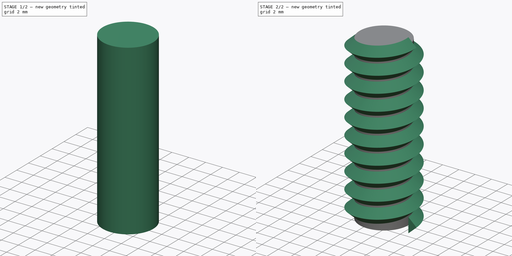
[diagram: build sequence overview — one tinted view per stage of 2, left to right]
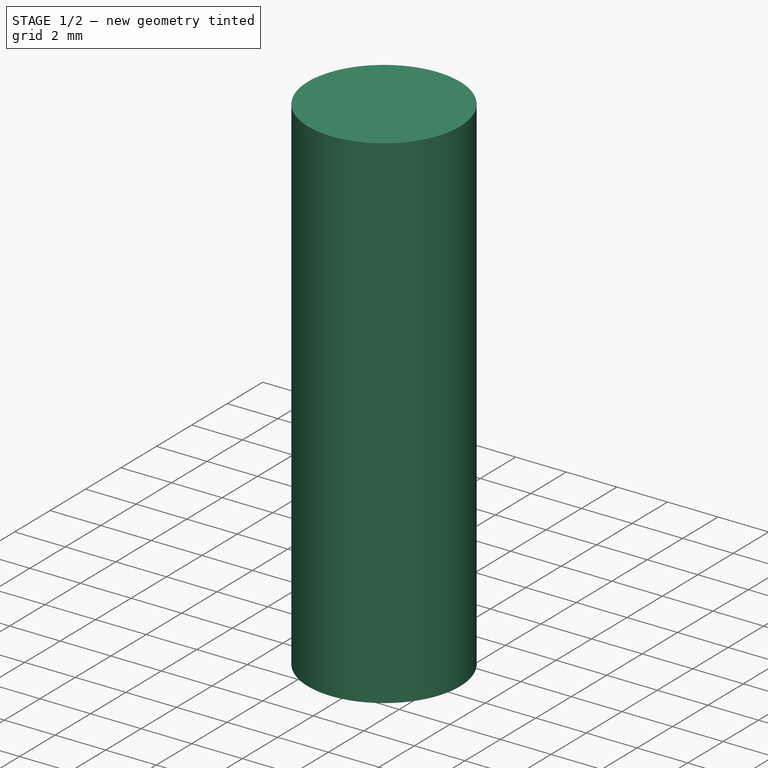
[diagram: stage 1 of 2 — iso view after this stage's code; geometry added in this stage tinted green]
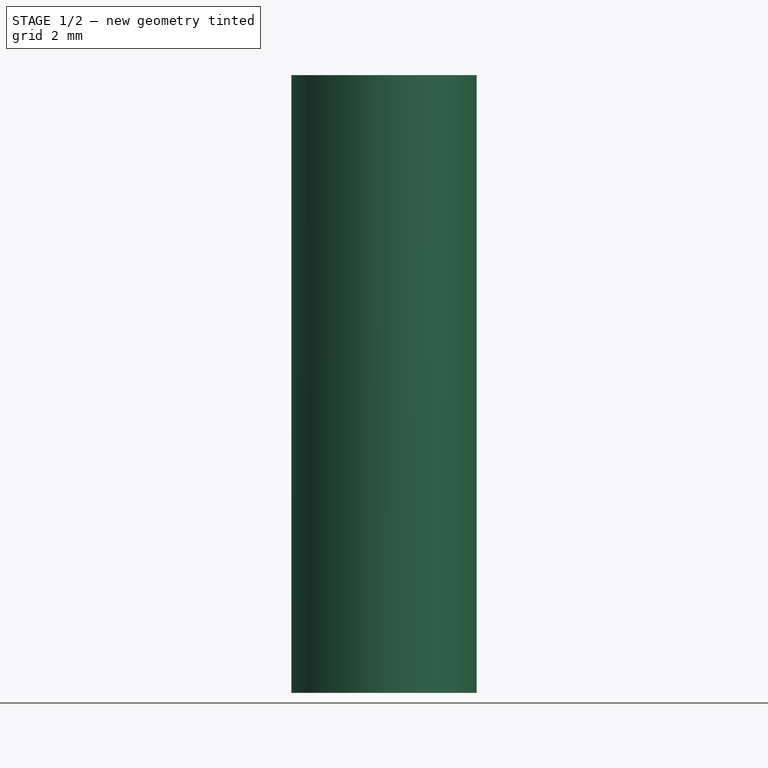
[diagram: stage 1 of 2 — front view after this stage's code; geometry added in this stage tinted green]
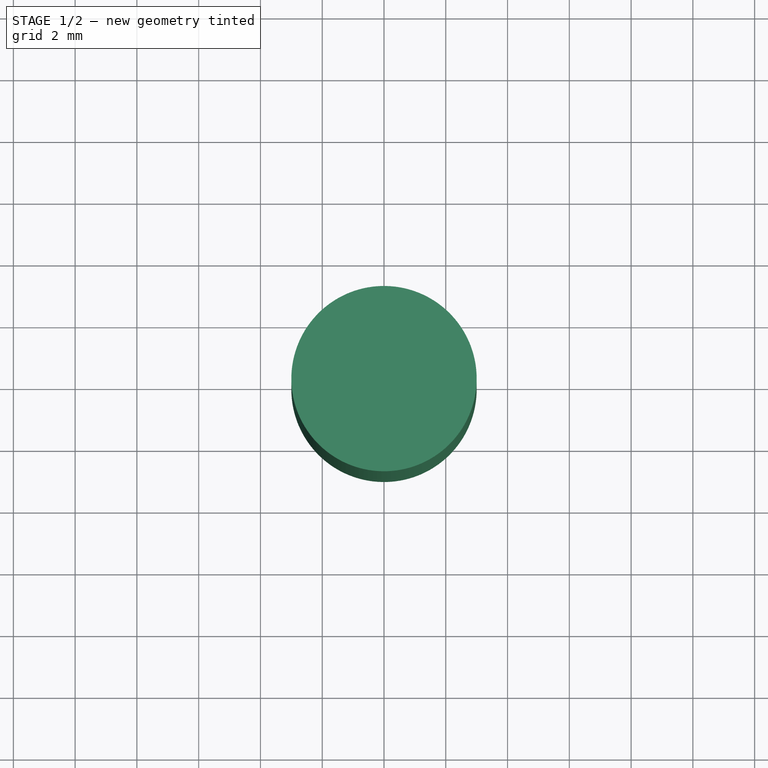
[diagram: stage 1 of 2 — top view after this stage's code; geometry added in this stage tinted green]
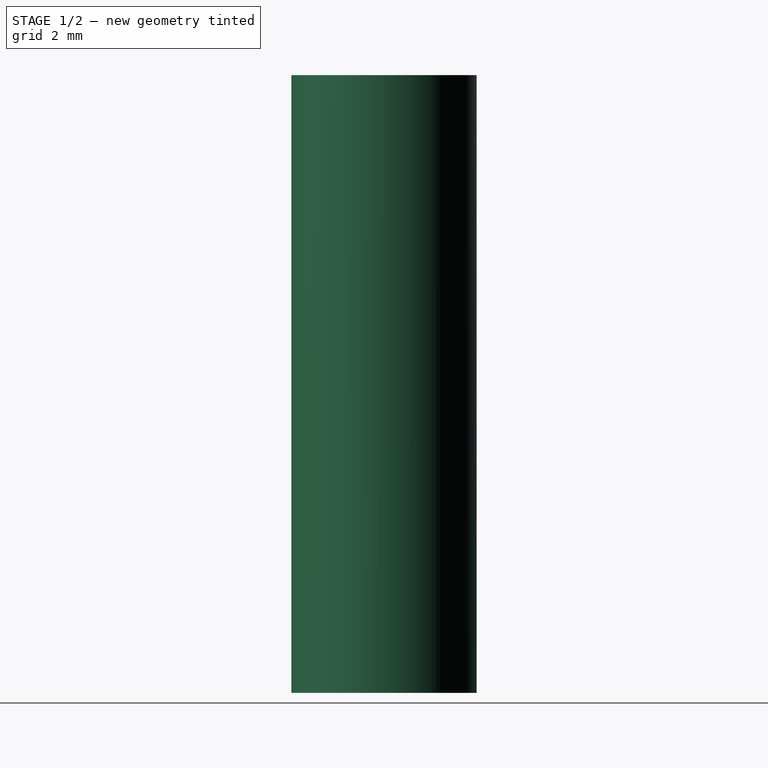
[diagram: stage 1 of 2 — right view after this stage's code; geometry added in this stage tinted green]
FCSTD DOCUMENT  (FreeCAD 1.0R39319 (Git))
Label: ShaftScrew__Lead 8
License: All rights reserved
LicenseURL: http://en.wikipedia.org/wiki/All_rights_reserved
objects: Sketcher::SketchObject×2, Part::Helix×1, Part::Sweep×1, PartDesign::Pad×1, PartDesign::Body×1
note: 10 computed .brp shape members not serialized (recipe doc carries the construction recipe); baked Part::Feature solids carry a one-line shape summary decoded from their .brp

FEATURE [Sketcher::SketchObject] Sketch001
  ArcFitTolerance = 0
  AttachmentSupport = -> [XY_Plane]
  FullyConstrained = true
  MakeInternals = false
  MapMode = 5
  sketch-geometry (1):
    g0: Circle CenterX=0 CenterY=0 CenterZ=0 NormalX=0 NormalY=0 NormalZ=1 AngleXU=0 Radius=3
  constraints (2):
    c: Coincident(g0,g-1)
    c: Diameter(g0) = 6
FEATURE [PartDesign::Pad] Pad
  AllowMultiFace = false
  Direction = (0,0,1)
  Length = 20
  Length2 = 100
  Profile = -> Sketch001
  Suppressed = false
  Type = 0
FEATURE [PartDesign::Body] Body
  AllowCompound = false
  Group = -> [Sketch001,Pad]
  Origin = -> Origin
  Tip = -> Pad
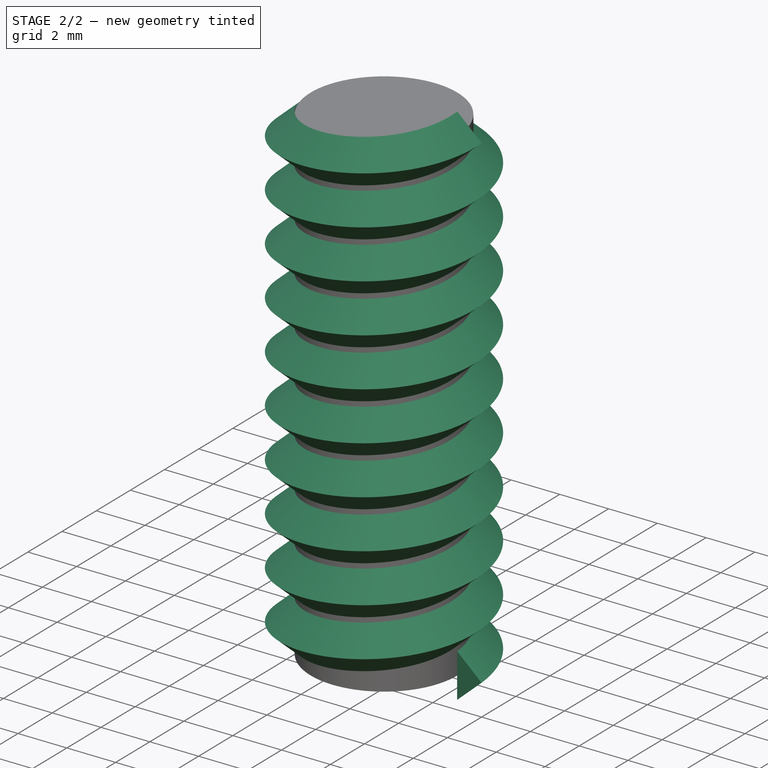
[diagram: stage 2 of 2 — iso view after this stage's code; geometry added in this stage tinted green]
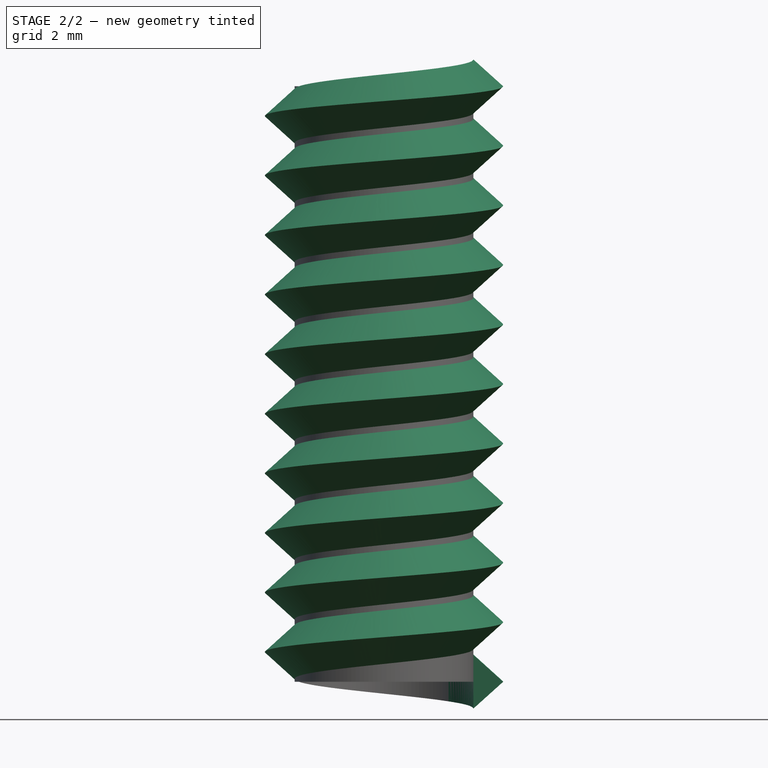
[diagram: stage 2 of 2 — front view after this stage's code; geometry added in this stage tinted green]
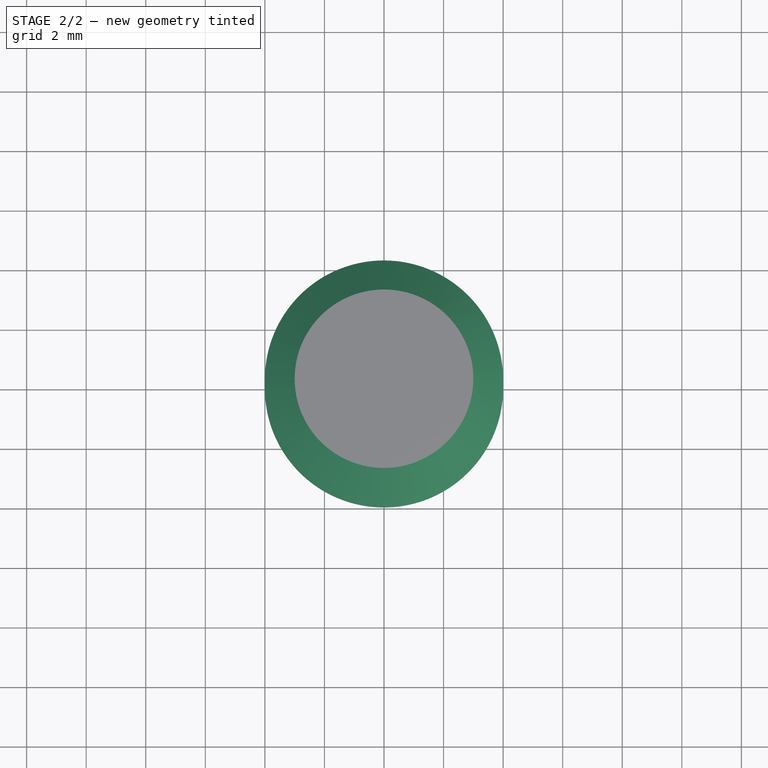
[diagram: stage 2 of 2 — top view after this stage's code; geometry added in this stage tinted green]
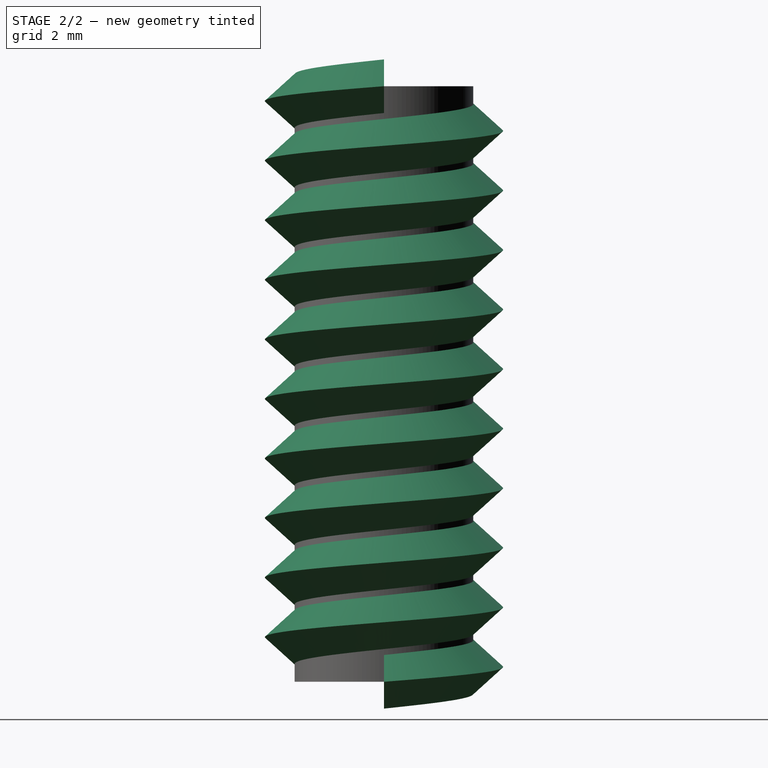
[diagram: stage 2 of 2 — right view after this stage's code; geometry added in this stage tinted green]
FEATURE [Part::Helix] Helix
  Angle = 0
  AttacherType = Attacher::AttachEngine3D
  Height = 20
  Length = 252.122
  LocalCoord = 0
  Pitch = 2
  Radius = 4
  SegmentLength = 0
  Style = 1
FEATURE [Sketcher::SketchObject] Sketch
  ArcFitTolerance = 0
  FullyConstrained = true
  MakeInternals = false
  Placement = pos=(0,0,0) rot=(-1,0,0;4.71239rad)
  sketch-geometry (3):
    g0: LineSegment StartX=3 StartY=0.9 StartZ=0 EndX=3 EndY=-0.9 EndZ=0
    g1: LineSegment StartX=3 StartY=-0.9 StartZ=0 EndX=4 EndY=0 EndZ=0
    g2: LineSegment StartX=4 StartY=0 StartZ=0 EndX=3 EndY=0.9 EndZ=0
  constraints (8):
    c: Coincident(g0,g1)
    c: PointOnObject(g1,g-1)
    c: Coincident(g1,g2)
    c: Coincident(g2,g0)
    c: Symmetric(g0,g0,g-1)
    c: DistanceY(g0,g0) = 1.8
    c: DistanceX(g0,g1) = 1
    c: DistanceX(g-1,g1) = 4
FEATURE [Part::Sweep] Sweep
  Frenet = true
  Sections = -> [Sketch]
  Solid = true
  Spine = -> Helix
  Transition = 1
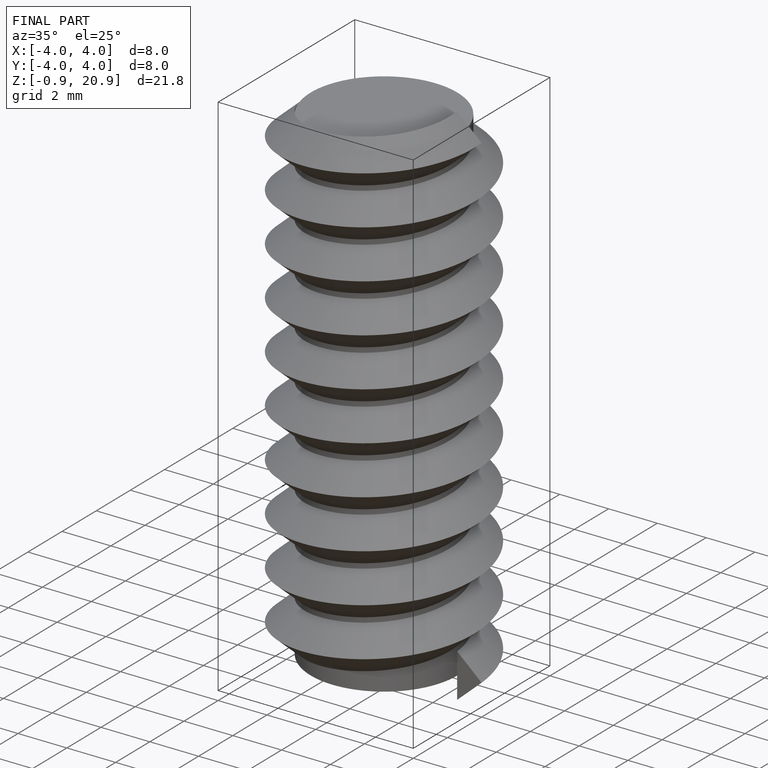
[diagram: finished part — iso view with bounding-box wireframe]
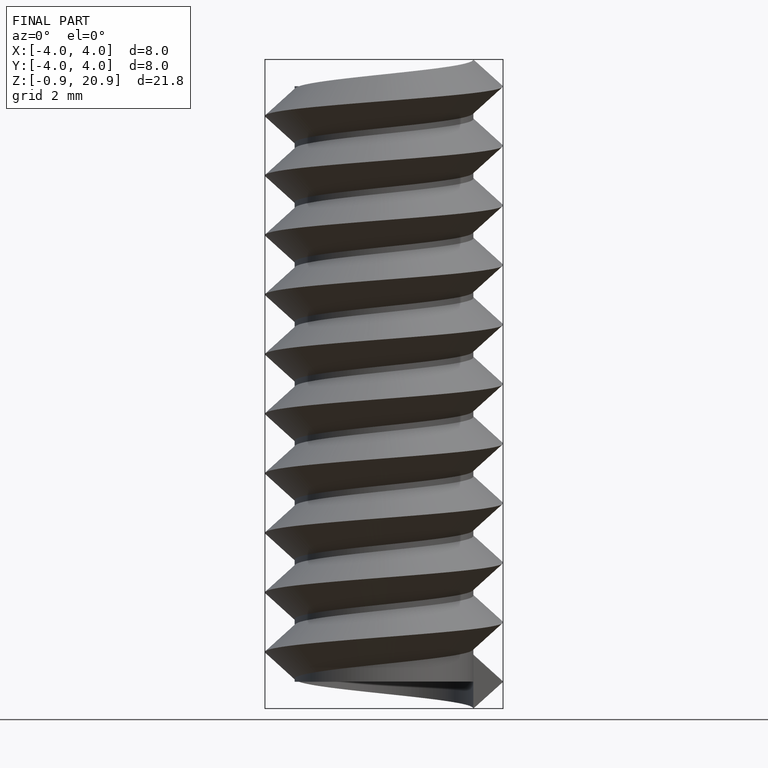
[diagram: finished part — front view with bounding-box wireframe]
